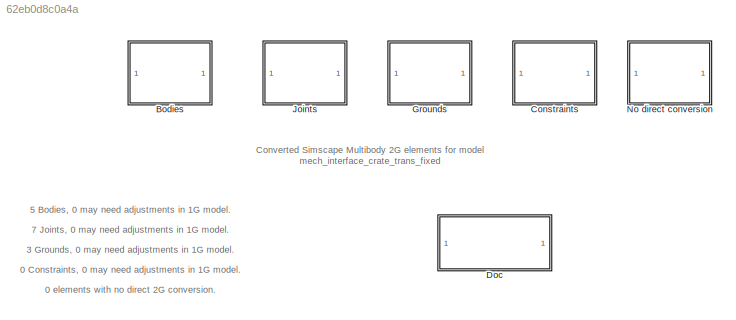
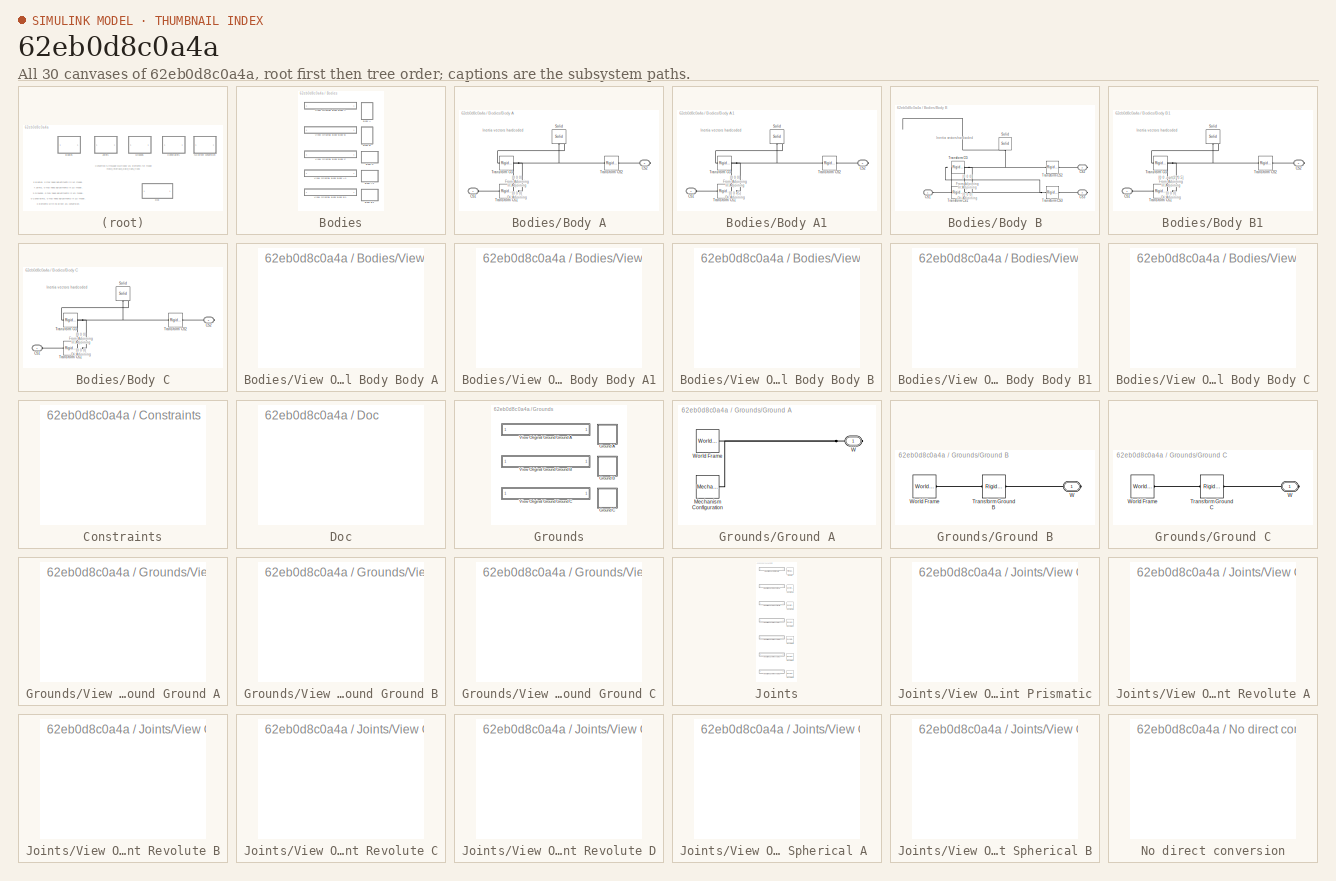
[diagram: thumbnail index - all 30 canvases of the model, root first then tree order]
MODEL slx_62eb0d8c0a4a
KIND model
CONFIG AbsTol = auto
CONFIG EnableMultiTasking = off
CONFIG FixedStep = auto
CONFIG MaxStep = auto
CONFIG MinStep = auto
CONFIG RelTol = 1e-3
CONFIG SampleTimeConstraint = Unconstrained
CONFIG Solver = VariableStepAuto
CONFIG SolverName = VariableStepAuto
CONFIG StartTime = 0.0
CONFIG StopTime = 10.0
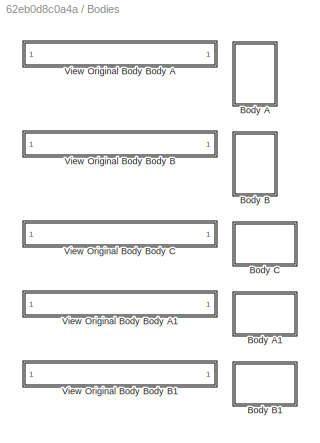
BLOCK [SubSystem] Bodies
  Ports = []
  RequestExecContextInheritance = off
  Variant = off
BLOCK [SubSystem] Bodies/Body A
  Ports = [0, 0, 0, 0, 0, 1, 1]
  RequestExecContextInheritance = off
  Variant = off
BLOCK [PMIOPort] Bodies/Body A/CS1
  Port = 1
  Side = Left
BLOCK [PMIOPort] Bodies/Body A/CS2
  Port = 2
  Side = Right
BLOCK [Reference] Bodies/Body A/Solid  REF=sm_lib/Body Elements/Solid
  Ports = [0, 0, 0, 0, 0, 0, 1]
  SourceBlock = sm_lib/Body Elements/Solid
  SourceProductBaseCode = MS
  SourceProductName = Simscape Multibody
  SourceType = Solid
BLOCK [Reference] Bodies/Body A/Transform CG  REF=sm_lib/Frames and
Transforms/Rigid
Transform
  Ports = [0, 0, 0, 0, 0, 1, 1]
  SourceBlock = sm_lib/Frames and\nTransforms/Rigid\nTransform
  SourceProductBaseCode = MS
  SourceProductName = Simscape Multibody
  SourceType = Rigid\nTransform
BLOCK [Reference] Bodies/Body A/Transform CS1  REF=sm_lib/Frames and
Transforms/Rigid
Transform
  Ports = [0, 0, 0, 0, 0, 1, 1]
  SourceBlock = sm_lib/Frames and\nTransforms/Rigid\nTransform
  SourceProductBaseCode = MS
  SourceProductName = Simscape Multibody
  SourceType = Rigid\nTransform
BLOCK [Reference] Bodies/Body A/Transform CS2  REF=sm_lib/Frames and
Transforms/Rigid
Transform
  Ports = [0, 0, 0, 0, 0, 1, 1]
  SourceBlock = sm_lib/Frames and\nTransforms/Rigid\nTransform
  SourceProductBaseCode = MS
  SourceProductName = Simscape Multibody
  SourceType = Rigid\nTransform
BLOCK [SubSystem] Bodies/Body A1
  Ports = [0, 0, 0, 0, 0, 1, 1]
  RequestExecContextInheritance = off
  Variant = off
BLOCK [PMIOPort] Bodies/Body A1/CS1
  Port = 1
  Side = Left
BLOCK [PMIOPort] Bodies/Body A1/CS2
  Port = 2
  Side = Right
BLOCK [Reference] Bodies/Body A1/Solid  REF=sm_lib/Body Elements/Solid
  Ports = [0, 0, 0, 0, 0, 0, 1]
  SourceBlock = sm_lib/Body Elements/Solid
  SourceProductBaseCode = MS
  SourceProductName = Simscape Multibody
  SourceType = Solid
BLOCK [Reference] Bodies/Body A1/Transform CG  REF=sm_lib/Frames and
Transforms/Rigid
Transform
  Ports = [0, 0, 0, 0, 0, 1, 1]
  SourceBlock = sm_lib/Frames and\nTransforms/Rigid\nTransform
  SourceProductBaseCode = MS
  SourceProductName = Simscape Multibody
  SourceType = Rigid\nTransform
BLOCK [Reference] Bodies/Body A1/Transform CS1  REF=sm_lib/Frames and
Transforms/Rigid
Transform
  Ports = [0, 0, 0, 0, 0, 1, 1]
  SourceBlock = sm_lib/Frames and\nTransforms/Rigid\nTransform
  SourceProductBaseCode = MS
  SourceProductName = Simscape Multibody
  SourceType = Rigid\nTransform
BLOCK [Reference] Bodies/Body A1/Transform CS2  REF=sm_lib/Frames and
Transforms/Rigid
Transform
  Ports = [0, 0, 0, 0, 0, 1, 1]
  SourceBlock = sm_lib/Frames and\nTransforms/Rigid\nTransform
  SourceProductBaseCode = MS
  SourceProductName = Simscape Multibody
  SourceType = Rigid\nTransform
BLOCK [SubSystem] Bodies/Body B
  Ports = [0, 0, 0, 0, 0, 1, 2]
  RequestExecContextInheritance = off
  Variant = off
BLOCK [PMIOPort] Bodies/Body B/CS1
  Port = 1
  Side = Left
BLOCK [PMIOPort] Bodies/Body B/CS2
  Port = 2
  Side = Right
BLOCK [PMIOPort] Bodies/Body B/CS3
  Port = 3
  Side = Right
BLOCK [Reference] Bodies/Body B/Solid  REF=sm_lib/Body Elements/Solid
  Ports = [0, 0, 0, 0, 0, 0, 1]
  SourceBlock = sm_lib/Body Elements/Solid
  SourceProductBaseCode = MS
  SourceProductName = Simscape Multibody
  SourceType = Solid
BLOCK [Reference] Bodies/Body B/Transform CG  REF=sm_lib/Frames and
Transforms/Rigid
Transform
  Ports = [0, 0, 0, 0, 0, 1, 1]
  SourceBlock = sm_lib/Frames and\nTransforms/Rigid\nTransform
  SourceProductBaseCode = MS
  SourceProductName = Simscape Multibody
  SourceType = Rigid\nTransform
BLOCK [Reference] Bodies/Body B/Transform CS1  REF=sm_lib/Frames and
Transforms/Rigid
Transform
  Ports = [0, 0, 0, 0, 0, 1, 1]
  SourceBlock = sm_lib/Frames and\nTransforms/Rigid\nTransform
  SourceProductBaseCode = MS
  SourceProductName = Simscape Multibody
  SourceType = Rigid\nTransform
BLOCK [Reference] Bodies/Body B/Transform CS2  REF=sm_lib/Frames and
Transforms/Rigid
Transform
  Ports = [0, 0, 0, 0, 0, 1, 1]
  SourceBlock = sm_lib/Frames and\nTransforms/Rigid\nTransform
  SourceProductBaseCode = MS
  SourceProductName = Simscape Multibody
  SourceType = Rigid\nTransform
BLOCK [Reference] Bodies/Body B/Transform CS3  REF=sm_lib/Frames and
Transforms/Rigid
Transform
  Ports = [0, 0, 0, 0, 0, 1, 1]
  SourceBlock = sm_lib/Frames and\nTransforms/Rigid\nTransform
  SourceProductBaseCode = MS
  SourceProductName = Simscape Multibody
  SourceType = Rigid\nTransform
BLOCK [SubSystem] Bodies/Body B1
  Ports = [0, 0, 0, 0, 0, 1, 1]
  RequestExecContextInheritance = off
  Variant = off
BLOCK [PMIOPort] Bodies/Body B1/CS1
  Port = 1
  Side = Left
BLOCK [PMIOPort] Bodies/Body B1/CS2
  Port = 2
  Side = Right
BLOCK [Reference] Bodies/Body B1/Solid  REF=sm_lib/Body Elements/Solid
  Ports = [0, 0, 0, 0, 0, 0, 1]
  SourceBlock = sm_lib/Body Elements/Solid
  SourceProductBaseCode = MS
  SourceProductName = Simscape Multibody
  SourceType = Solid
BLOCK [Reference] Bodies/Body B1/Transform CG  REF=sm_lib/Frames and
Transforms/Rigid
Transform
  Ports = [0, 0, 0, 0, 0, 1, 1]
  SourceBlock = sm_lib/Frames and\nTransforms/Rigid\nTransform
  SourceProductBaseCode = MS
  SourceProductName = Simscape Multibody
  SourceType = Rigid\nTransform
BLOCK [Reference] Bodies/Body B1/Transform CS1  REF=sm_lib/Frames and
Transforms/Rigid
Transform
  Ports = [0, 0, 0, 0, 0, 1, 1]
  SourceBlock = sm_lib/Frames and\nTransforms/Rigid\nTransform
  SourceProductBaseCode = MS
  SourceProductName = Simscape Multibody
  SourceType = Rigid\nTransform
BLOCK [Reference] Bodies/Body B1/Transform CS2  REF=sm_lib/Frames and
Transforms/Rigid
Transform
  Ports = [0, 0, 0, 0, 0, 1, 1]
  SourceBlock = sm_lib/Frames and\nTransforms/Rigid\nTransform
  SourceProductBaseCode = MS
  SourceProductName = Simscape Multibody
  SourceType = Rigid\nTransform
BLOCK [SubSystem] Bodies/Body C
  Ports = [0, 0, 0, 0, 0, 1, 1]
  RequestExecContextInheritance = off
  Variant = off
BLOCK [PMIOPort] Bodies/Body C/CS1
  Port = 1
  Side = Left
BLOCK [PMIOPort] Bodies/Body C/CS2
  Port = 2
  Side = Right
BLOCK [Reference] Bodies/Body C/Solid  REF=sm_lib/Body Elements/Solid
  Ports = [0, 0, 0, 0, 0, 0, 1]
  SourceBlock = sm_lib/Body Elements/Solid
  SourceProductBaseCode = MS
  SourceProductName = Simscape Multibody
  SourceType = Solid
BLOCK [Reference] Bodies/Body C/Transform CG  REF=sm_lib/Frames and
Transforms/Rigid
Transform
  Ports = [0, 0, 0, 0, 0, 1, 1]
  SourceBlock = sm_lib/Frames and\nTransforms/Rigid\nTransform
  SourceProductBaseCode = MS
  SourceProductName = Simscape Multibody
  SourceType = Rigid\nTransform
BLOCK [Reference] Bodies/Body C/Transform CS1  REF=sm_lib/Frames and
Transforms/Rigid
Transform
  Ports = [0, 0, 0, 0, 0, 1, 1]
  SourceBlock = sm_lib/Frames and\nTransforms/Rigid\nTransform
  SourceProductBaseCode = MS
  SourceProductName = Simscape Multibody
  SourceType = Rigid\nTransform
BLOCK [Reference] Bodies/Body C/Transform CS2  REF=sm_lib/Frames and
Transforms/Rigid
Transform
  Ports = [0, 0, 0, 0, 0, 1, 1]
  SourceBlock = sm_lib/Frames and\nTransforms/Rigid\nTransform
  SourceProductBaseCode = MS
  SourceProductName = Simscape Multibody
  SourceType = Rigid\nTransform
BLOCK [SubSystem] Bodies/View Original Body Body A
  OpenFcn = hilite_system('mech_interface_crate_trans_fixed/Body A');
  Ports = []
  RequestExecContextInheritance = off
  Variant = off
BLOCK [SubSystem] Bodies/View Original Body Body A1
  OpenFcn = hilite_system('mech_interface_crate_trans_fixed/Body Force Interface/Body A');
  Ports = []
  RequestExecContextInheritance = off
  Variant = off
BLOCK [SubSystem] Bodies/View Original Body Body B
  OpenFcn = hilite_system('mech_interface_crate_trans_fixed/Body B');
  Ports = []
  RequestExecContextInheritance = off
  Variant = off
BLOCK [SubSystem] Bodies/View Original Body Body B1
  OpenFcn = hilite_system('mech_interface_crate_trans_fixed/Body Force Interface/Body B');
  Ports = []
  RequestExecContextInheritance = off
  Variant = off
BLOCK [SubSystem] Bodies/View Original Body Body C
  OpenFcn = hilite_system('mech_interface_crate_trans_fixed/Body C');
  Ports = []
  RequestExecContextInheritance = off
  Variant = off
BLOCK [SubSystem] Constraints
  Ports = []
  RequestExecContextInheritance = off
  Variant = off
BLOCK [SubSystem] Doc
  OpenFcn = web('SM1G2G_Warnings_Help.html');
  Ports = []
  RequestExecContextInheritance = off
  Variant = off
BLOCK [SubSystem] Grounds
  Ports = []
  RequestExecContextInheritance = off
  Variant = off
BLOCK [SubSystem] Grounds/Ground A
  Ports = [0, 0, 0, 0, 0, 0, 1]
  RequestExecContextInheritance = off
  Variant = off
BLOCK [Reference] Grounds/Ground A/Mechanism Configuration  REF=sm_lib/Utilities/Mechanism
Configuration
  Ports = [0, 0, 0, 0, 0, 0, 1]
  SourceBlock = sm_lib/Utilities/Mechanism\nConfiguration
  SourceProductBaseCode = MS
  SourceProductName = Simscape Multibody
  SourceType = Mechanism\nConfiguration
BLOCK [PMIOPort] Grounds/Ground A/W
  Port = 1
  Side = Right
BLOCK [Reference] Grounds/Ground A/World Frame  REF=sm_lib/Frames and
Transforms/World Frame
  Ports = [0, 0, 0, 0, 0, 0, 1]
  SourceBlock = sm_lib/Frames and\nTransforms/World Frame
  SourceProductBaseCode = MS
  SourceProductName = Simscape Multibody
  SourceType = World Frame
BLOCK [SubSystem] Grounds/Ground B
  Ports = [0, 0, 0, 0, 0, 0, 1]
  RequestExecContextInheritance = off
  Variant = off
BLOCK [Reference] Grounds/Ground B/Transform Ground B  REF=sm_lib/Frames and
Transforms/Rigid
Transform
  Ports = [0, 0, 0, 0, 0, 1, 1]
  SourceBlock = sm_lib/Frames and\nTransforms/Rigid\nTransform
  SourceProductBaseCode = MS
  SourceProductName = Simscape Multibody
  SourceType = Rigid\nTransform
BLOCK [PMIOPort] Grounds/Ground B/W
  Port = 1
  Side = Right
BLOCK [Reference] Grounds/Ground B/World Frame  REF=sm_lib/Frames and
Transforms/World Frame
  Ports = [0, 0, 0, 0, 0, 0, 1]
  SourceBlock = sm_lib/Frames and\nTransforms/World Frame
  SourceProductBaseCode = MS
  SourceProductName = Simscape Multibody
  SourceType = World Frame
BLOCK [SubSystem] Grounds/Ground C
  Ports = [0, 0, 0, 0, 0, 0, 1]
  RequestExecContextInheritance = off
  Variant = off
BLOCK [Reference] Grounds/Ground C/Transform Ground C  REF=sm_lib/Frames and
Transforms/Rigid
Transform
  Ports = [0, 0, 0, 0, 0, 1, 1]
  SourceBlock = sm_lib/Frames and\nTransforms/Rigid\nTransform
  SourceProductBaseCode = MS
  SourceProductName = Simscape Multibody
  SourceType = Rigid\nTransform
BLOCK [PMIOPort] Grounds/Ground C/W
  Port = 1
  Side = Right
BLOCK [Reference] Grounds/Ground C/World Frame  REF=sm_lib/Frames and
Transforms/World Frame
  Ports = [0, 0, 0, 0, 0, 0, 1]
  SourceBlock = sm_lib/Frames and\nTransforms/World Frame
  SourceProductBaseCode = MS
  SourceProductName = Simscape Multibody
  SourceType = World Frame
BLOCK [SubSystem] Grounds/View Original Ground Ground A
  OpenFcn = hilite_system('mech_interface_crate_trans_fixed/Ground A');
  Ports = []
  RequestExecContextInheritance = off
  Variant = off
BLOCK [SubSystem] Grounds/View Original Ground Ground B
  OpenFcn = hilite_system('mech_interface_crate_trans_fixed/Ground B');
  Ports = []
  RequestExecContextInheritance = off
  Variant = off
BLOCK [SubSystem] Grounds/View Original Ground Ground C
  OpenFcn = hilite_system('mech_interface_crate_trans_fixed/Ground C');
  Ports = []
  RequestExecContextInheritance = off
  Variant = off
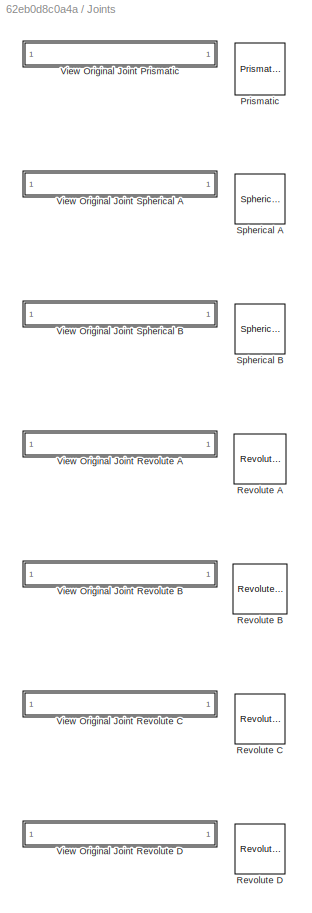
BLOCK [SubSystem] Joints
  Ports = []
  RequestExecContextInheritance = off
  Variant = off
BLOCK [Reference] Joints/Prismatic  REF=sm_lib/Joints/Prismatic
Joint
  Ports = [0, 0, 0, 0, 0, 1, 1]
  SourceBlock = sm_lib/Joints/Prismatic\nJoint
  SourceProductBaseCode = MS
  SourceProductName = Simscape Multibody
  SourceType = Prismatic\nJoint
BLOCK [Reference] Joints/Revolute A  REF=sm_lib/Joints/Revolute Joint
  Ports = [0, 0, 0, 0, 0, 1, 1]
  SourceBlock = sm_lib/Joints/Revolute Joint
  SourceProductBaseCode = MS
  SourceProductName = Simscape Multibody
  SourceType = Revolute Joint
BLOCK [Reference] Joints/Revolute B  REF=sm_lib/Joints/Revolute Joint
  Ports = [0, 0, 0, 0, 0, 1, 1]
  SourceBlock = sm_lib/Joints/Revolute Joint
  SourceProductBaseCode = MS
  SourceProductName = Simscape Multibody
  SourceType = Revolute Joint
BLOCK [Reference] Joints/Revolute C  REF=sm_lib/Joints/Revolute Joint
  Ports = [0, 0, 0, 0, 0, 1, 1]
  SourceBlock = sm_lib/Joints/Revolute Joint
  SourceProductBaseCode = MS
  SourceProductName = Simscape Multibody
  SourceType = Revolute Joint
BLOCK [Reference] Joints/Revolute D  REF=sm_lib/Joints/Revolute Joint
  Ports = [0, 0, 0, 0, 0, 1, 1]
  SourceBlock = sm_lib/Joints/Revolute Joint
  SourceProductBaseCode = MS
  SourceProductName = Simscape Multibody
  SourceType = Revolute Joint
BLOCK [Reference] Joints/Spherical A   REF=sm_lib/Joints/Spherical
Joint
  Ports = [0, 0, 0, 0, 0, 1, 1]
  SourceBlock = sm_lib/Joints/Spherical\nJoint
  SourceProductBaseCode = MS
  SourceProductName = Simscape Multibody
  SourceType = Spherical\nJoint
BLOCK [Reference] Joints/Spherical B  REF=sm_lib/Joints/Spherical
Joint
  Ports = [0, 0, 0, 0, 0, 1, 1]
  SourceBlock = sm_lib/Joints/Spherical\nJoint
  SourceProductBaseCode = MS
  SourceProductName = Simscape Multibody
  SourceType = Spherical\nJoint
BLOCK [SubSystem] Joints/View Original Joint Prismatic
  OpenFcn = hilite_system('mech_interface_crate_trans_fixed/Body Force Interface/Prismatic');
  Ports = []
  RequestExecContextInheritance = off
  Variant = off
BLOCK [SubSystem] Joints/View Original Joint Revolute A
  OpenFcn = hilite_system('mech_interface_crate_trans_fixed/Revolute A');
  Ports = []
  RequestExecContextInheritance = off
  Variant = off
BLOCK [SubSystem] Joints/View Original Joint Revolute B
  OpenFcn = hilite_system('mech_interface_crate_trans_fixed/Revolute B');
  Ports = []
  RequestExecContextInheritance = off
  Variant = off
BLOCK [SubSystem] Joints/View Original Joint Revolute C
  OpenFcn = hilite_system('mech_interface_crate_trans_fixed/Revolute C');
  Ports = []
  RequestExecContextInheritance = off
  Variant = off
BLOCK [SubSystem] Joints/View Original Joint Revolute D
  OpenFcn = hilite_system('mech_interface_crate_trans_fixed/Revolute D');
  Ports = []
  RequestExecContextInheritance = off
  Variant = off
BLOCK [SubSystem] Joints/View Original Joint Spherical A 
  OpenFcn = hilite_system('mech_interface_crate_trans_fixed/Body Force Interface/Spherical A ');
  Ports = []
  RequestExecContextInheritance = off
  Variant = off
BLOCK [SubSystem] Joints/View Original Joint Spherical B
  OpenFcn = hilite_system('mech_interface_crate_trans_fixed/Body Force Interface/Spherical B');
  Ports = []
  RequestExecContextInheritance = off
  Variant = off
BLOCK [SubSystem] No direct conversion
  Ports = []
  RequestExecContextInheritance = off
  Variant = off
ANNOTATION (root): 0 Constraints, 0 may need adjustments in 1G model.
ANNOTATION (root): 0 elements with no direct 2G conversion.
ANNOTATION (root): 3 Grounds, 0 may need adjustments in 1G model.
ANNOTATION (root): 5 Bodies, 0 may need adjustments in 1G model.
ANNOTATION (root): 7 Joints, 0 may need adjustments in 1G model.
ANNOTATION (root): Converted Simscape Multibody 2G elements for model mech_interface_crate_trans_fixed
ANNOTATION Bodies/Body A: Inertia vectors hardcoded
ANNOTATION Bodies/Body A: [0 0 0] From:Adjoining In:Adjoining [0 0 0] Ori:Adjoining
ANNOTATION Bodies/Body A1: Inertia vectors hardcoded
ANNOTATION Bodies/Body A1: [0 0 0] From:Adjoining In:Adjoining [0 0 45] Ori:Adjoining
ANNOTATION Bodies/Body B: Inertia vectors hardcoded
ANNOTATION Bodies/Body B: [0 0 0] From:Adjoining In:Adjoining [0 0 0] Ori:Adjoining
ANNOTATION Bodies/Body B1: Inertia vectors hardcoded
ANNOTATION Bodies/Body B1: [0 0 -sqrt(2)*0.5] From:Adjoining In:Adjoining [0 0 0] Ori:Adjoining
ANNOTATION Bodies/Body C: Inertia vectors hardcoded
ANNOTATION Bodies/Body C: [0 0 0] From:Adjoining In:Adjoining [0 0 0] Ori:Adjoining
PLINE Bodies/Body A/CS1:RConn1 -- Bodies/Body A/Transform CS1:LConn1
PLINE Bodies/Body A/CS2:RConn1 -- Bodies/Body A/Transform CS2:RConn1
PLINE Bodies/Body A/Solid:RConn1 -- Bodies/Body A/Transform CG:RConn1
PNET net1: Bodies/Body A/Transform CG:LConn1 -- Bodies/Body A/Transform CS1:RConn1 -- Bodies/Body A/Transform CS2:LConn1
PLINE Bodies/Body A1/CS1:RConn1 -- Bodies/Body A1/Transform CS1:LConn1
PLINE Bodies/Body A1/CS2:RConn1 -- Bodies/Body A1/Transform CS2:RConn1
PLINE Bodies/Body A1/Solid:RConn1 -- Bodies/Body A1/Transform CG:RConn1
PNET net2: Bodies/Body A1/Transform CG:LConn1 -- Bodies/Body A1/Transform CS1:RConn1 -- Bodies/Body A1/Transform CS2:LConn1
PLINE Bodies/Body B/CS1:RConn1 -- Bodies/Body B/Transform CS1:LConn1
PLINE Bodies/Body B/CS2:RConn1 -- Bodies/Body B/Transform CS2:RConn1
PLINE Bodies/Body B/CS3:RConn1 -- Bodies/Body B/Transform CS3:RConn1
PNET net3: Bodies/Body B/Solid:RConn1 -- Bodies/Body B/Transform CG:RConn1 -- Bodies/Body B/Transform CS3:LConn1
PNET net4: Bodies/Body B/Transform CG:LConn1 -- Bodies/Body B/Transform CS1:RConn1 -- Bodies/Body B/Transform CS2:LConn1
PLINE Bodies/Body B1/CS1:RConn1 -- Bodies/Body B1/Transform CS1:LConn1
PLINE Bodies/Body B1/CS2:RConn1 -- Bodies/Body B1/Transform CS2:RConn1
PLINE Bodies/Body B1/Solid:RConn1 -- Bodies/Body B1/Transform CG:RConn1
PNET net5: Bodies/Body B1/Transform CG:LConn1 -- Bodies/Body B1/Transform CS1:RConn1 -- Bodies/Body B1/Transform CS2:LConn1
PLINE Bodies/Body C/CS1:RConn1 -- Bodies/Body C/Transform CS1:LConn1
PLINE Bodies/Body C/CS2:RConn1 -- Bodies/Body C/Transform CS2:RConn1
PLINE Bodies/Body C/Solid:RConn1 -- Bodies/Body C/Transform CG:RConn1
PNET net6: Bodies/Body C/Transform CG:LConn1 -- Bodies/Body C/Transform CS1:RConn1 -- Bodies/Body C/Transform CS2:LConn1
PNET net7: Grounds/Ground A/Mechanism Configuration:RConn1 -- Grounds/Ground A/W:RConn1 -- Grounds/Ground A/World Frame:RConn1
PLINE Grounds/Ground B/Transform Ground B:LConn1 -- Grounds/Ground B/World Frame:RConn1
PLINE Grounds/Ground B/Transform Ground B:RConn1 -- Grounds/Ground B/W:RConn1
PLINE Grounds/Ground C/Transform Ground C:LConn1 -- Grounds/Ground C/World Frame:RConn1
PLINE Grounds/Ground C/Transform Ground C:RConn1 -- Grounds/Ground C/W:RConn1
note: PNET lines group multi-terminal physical nets as a canonical sorted terminal list (undirected conserving connections); 2-terminal nets keep the pairwise PLINE form
